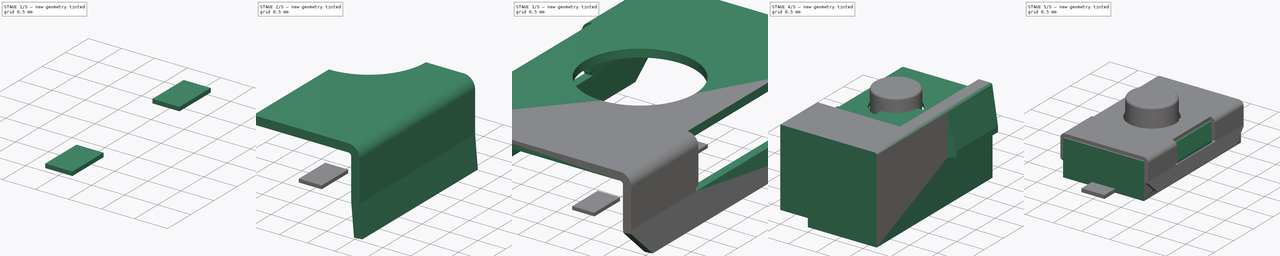
[diagram: build sequence overview — one tinted view per stage of 5, left to right]
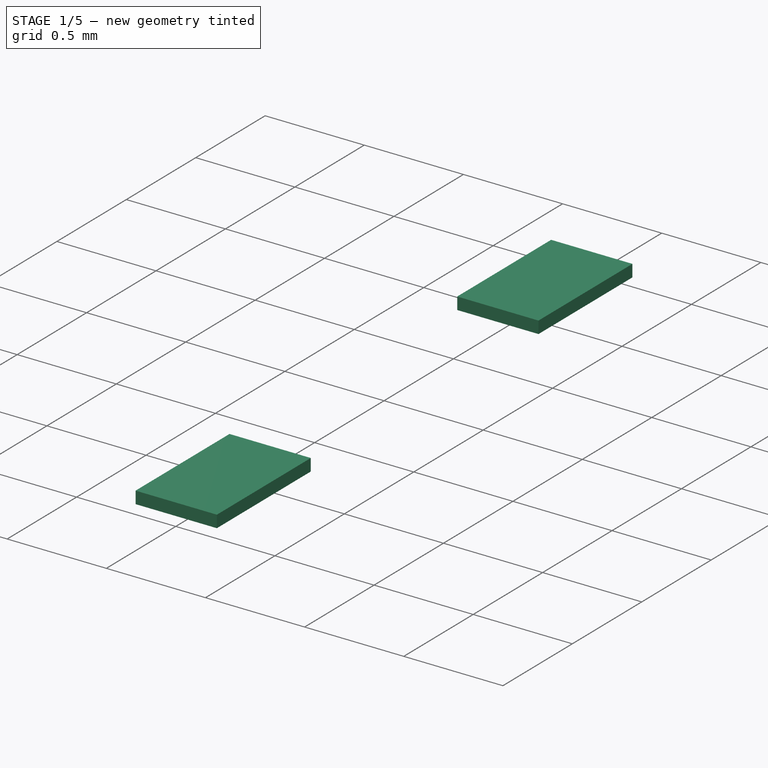
[diagram: stage 1 of 5 — iso view after this stage's code; geometry added in this stage tinted green]
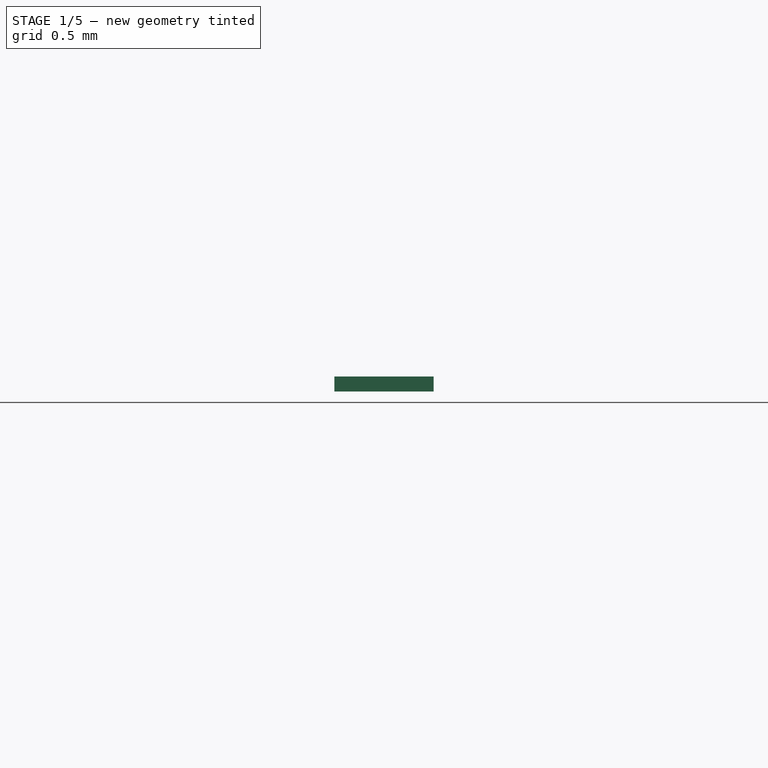
[diagram: stage 1 of 5 — front view after this stage's code; geometry added in this stage tinted green]
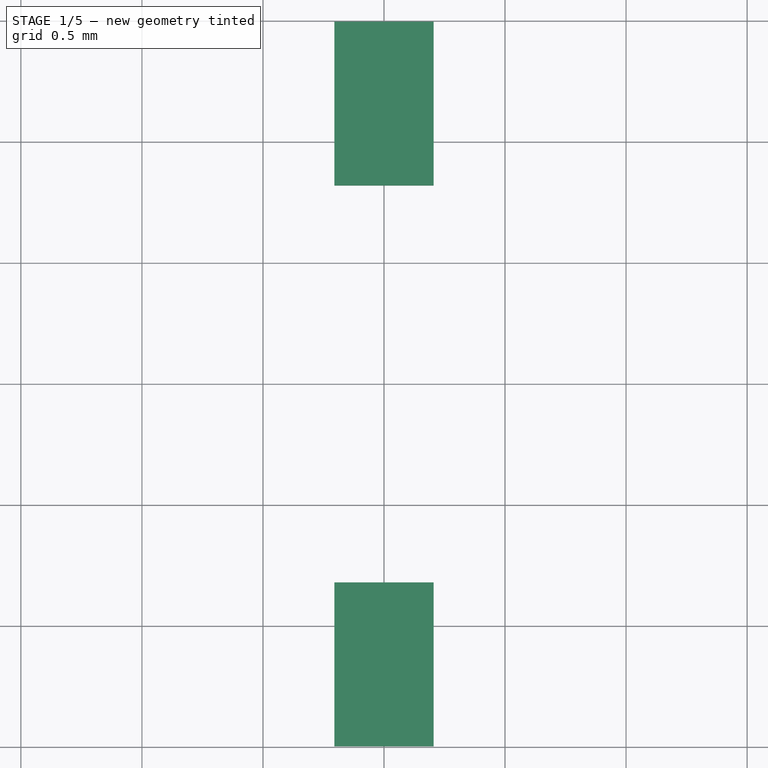
[diagram: stage 1 of 5 — top view after this stage's code; geometry added in this stage tinted green]
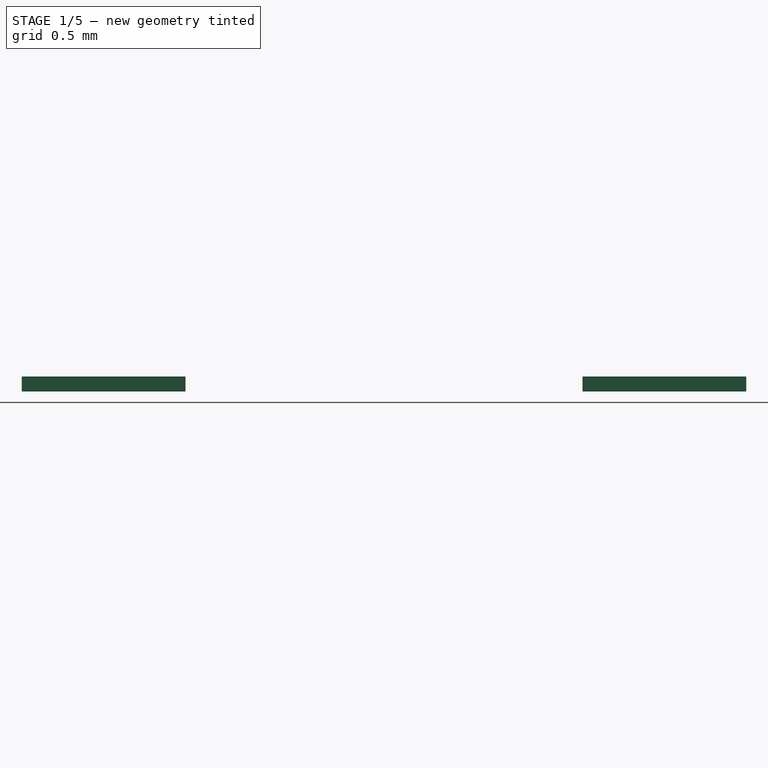
[diagram: stage 1 of 5 — right view after this stage's code; geometry added in this stage tinted green]
FCSTD DOCUMENT  (FreeCAD 0.16R6703 (Git))
Label: sw_smd_6.0x3.8
License: All rights reserved
LicenseURL: http://en.wikipedia.org/wiki/All_rights_reserved
objects: Part::FeaturePython×10, Sketcher::SketchObject×7, App::DocumentObjectGroup×6, Part::Feature×5, PartDesign::Pocket×5, Part::MultiFuse×5, Part::Mirroring×5, Part::Box×2, Part::Fillet×2, PartDesign::Pad×1, Part::Cylinder×1
note: 49 computed .brp shape members not serialized (recipe doc carries the construction recipe); baked Part::Feature solids carry a one-line shape summary decoded from their .brp

FEATURE [Part::Box] Box001  label="pin1-src"
  Height = 0.15
  Length = 1
  Placement = pos=(-0.5,-3.65,0.001) rot=(0,0,1;0rad)
  Width = 1.65
FEATURE [Part::Mirroring] Part__Mirroring004  label="pin1 (Mirror #5)"
  Base = (0,0,0)
  Normal = (0,1,0)
  Source = -> Box001
FEATURE [App::DocumentObjectGroup] Group004  label="pins"
  Group = -> [Box001,Part__Mirroring004]
FEATURE [App::DocumentObjectGroup] Group  label="src"
  Group = -> [Group001,Group002,Group003,Group004]
FEATURE [Part::FeaturePython] Clone003  label="pin1"  # Draft clone (typed FeaturePython)
  Objects = -> [Box001]
  Placement = pos=(-0.5,-3.65,0.001) rot=(0,0,1;0rad)
  Scale = (1,1,1)
FEATURE [Part::FeaturePython] Clone004  label="pin2"  # Draft clone (typed FeaturePython)
  Objects = -> [Part__Mirroring004]
  Scale = (1,1,1)
FEATURE [Part::FeaturePython] Clone008  label="Clone of pin1"  # Draft clone (typed FeaturePython)
  Objects = -> [Clone003]
  Placement = pos=(-0.5,-3.65,0.001) rot=(0,0,1;0rad)
  Scale = (0.41,0.41,0.41)
FEATURE [Part::FeaturePython] Clone009  label="Clone of pin2"  # Draft clone (typed FeaturePython)
  Objects = -> [Clone004]
  Scale = (0.41,0.41,0.41)
FEATURE [App::DocumentObjectGroup] Group005  label="Rescaled-for-kicad"
  Group = -> [Clone005,Clone006,Clone007,Clone008,Clone009]
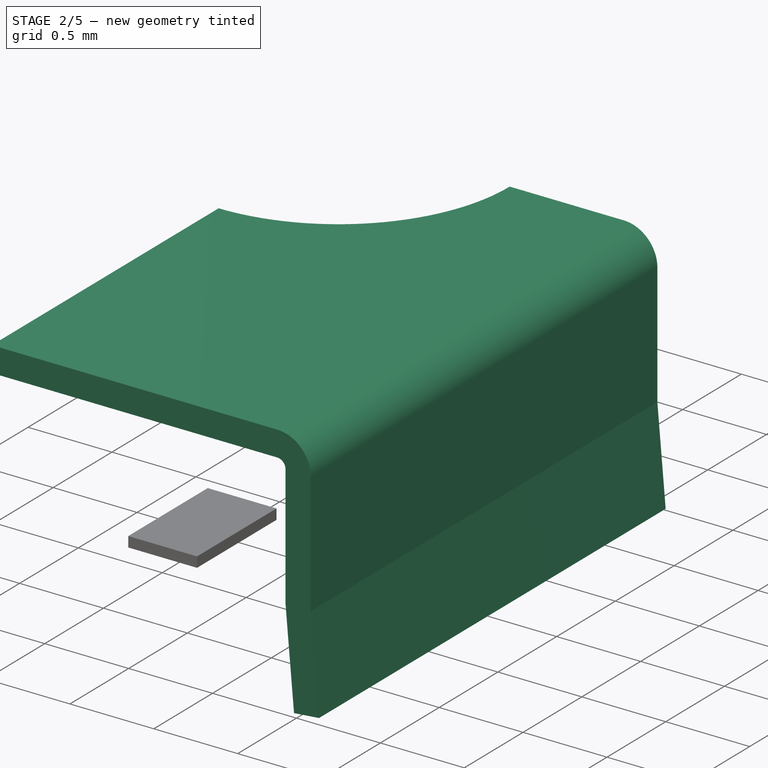
[diagram: stage 2 of 5 — iso view after this stage's code; geometry added in this stage tinted green]
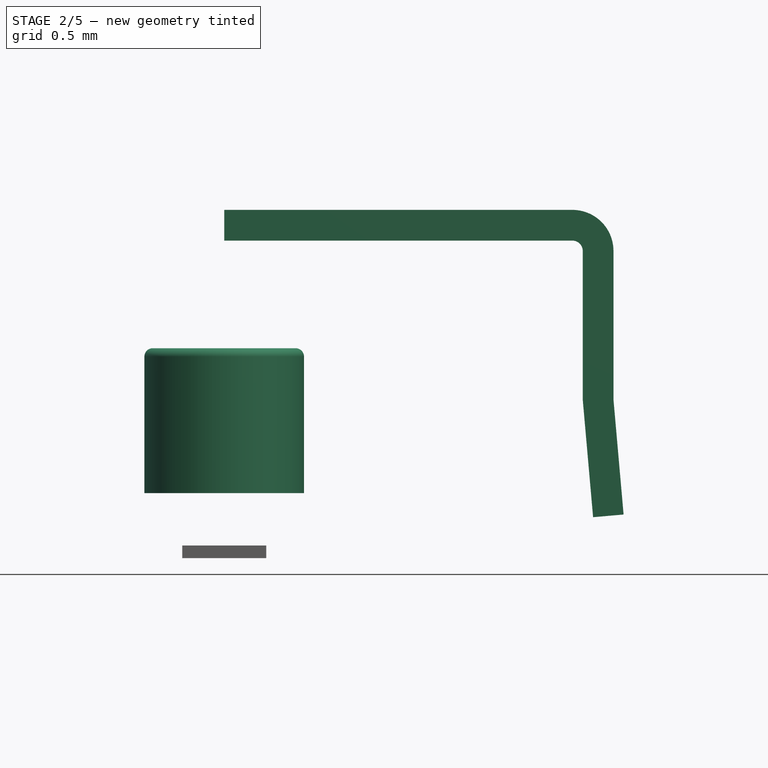
[diagram: stage 2 of 5 — front view after this stage's code; geometry added in this stage tinted green]
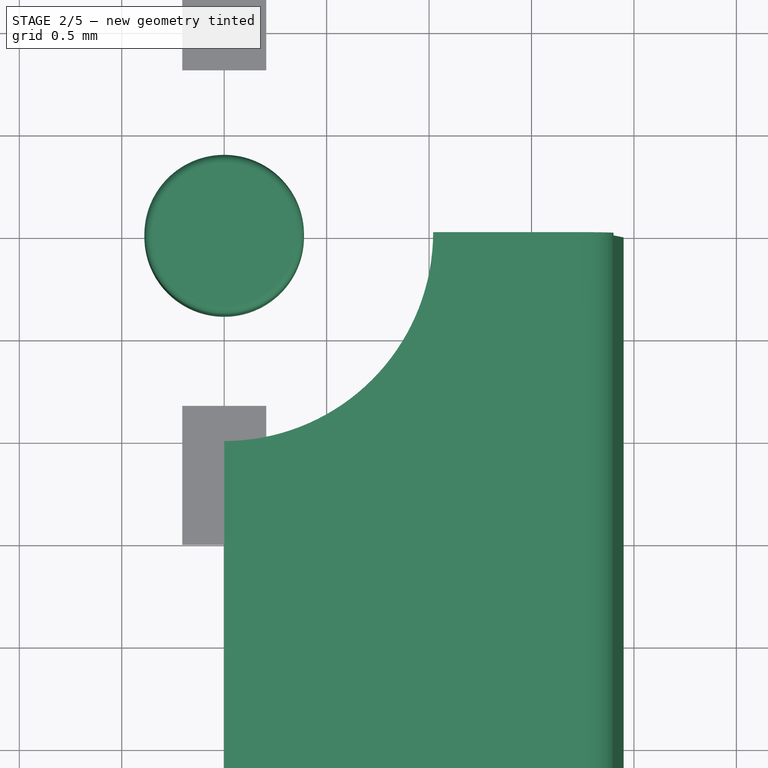
[diagram: stage 2 of 5 — top view after this stage's code; geometry added in this stage tinted green]
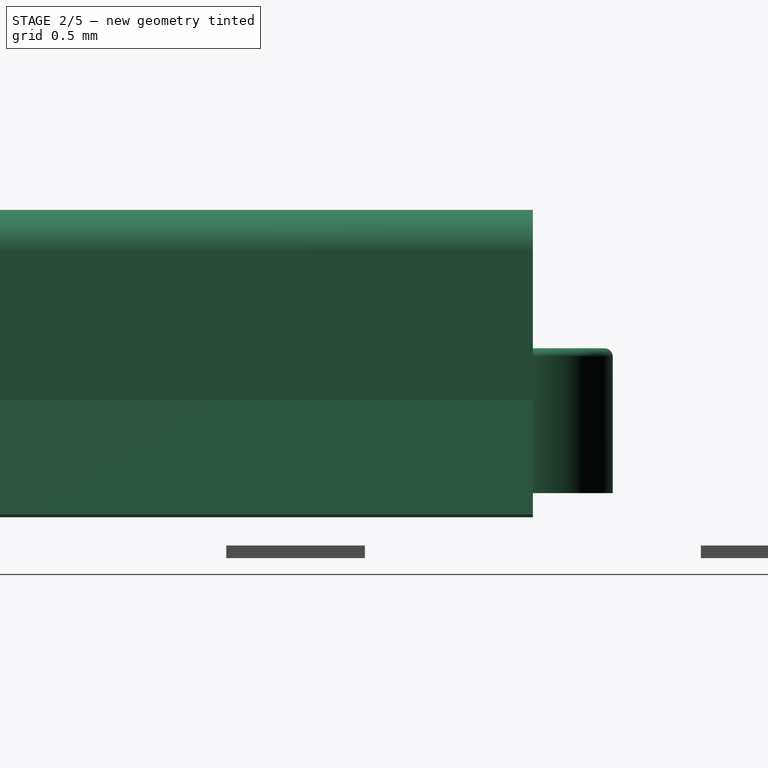
[diagram: stage 2 of 5 — right view after this stage's code; geometry added in this stage tinted green]
FEATURE [Sketcher::SketchObject] Sketch003  label="cover-sketch"
  Placement = pos=(0,0,0) rot=(-1,0,0;4.71239rad)
  sketch-geometry (14):
    g0: LineSegment StartX=1.7 StartY=1.7 StartZ=0 EndX=0 EndY=1.7 EndZ=0
    g1: LineSegment StartX=0 StartY=1.7 StartZ=0 EndX=0 EndY=1.55 EndZ=0
    g2: LineSegment StartX=0 StartY=1.55 StartZ=0 EndX=1.7 EndY=1.55 EndZ=0
    g3: LineSegment StartX=1.75 StartY=1.5 StartZ=0 EndX=1.75 EndY=0.775 EndZ=0
    g4: LineSegment StartX=1.75 StartY=0.775 StartZ=0 EndX=1.8006 EndY=0.200071 EndZ=0
    g5: LineSegment StartX=1.8006 StartY=0.200071 StartZ=0 EndX=1.94945 EndY=0.213172 EndZ=0
    g6: LineSegment StartX=1.94945 StartY=0.213172 StartZ=0 EndX=1.9 EndY=0.775 EndZ=0
    g7: LineSegment StartX=1.9 StartY=0.775 StartZ=0 EndX=1.9 EndY=1.5 EndZ=0
    g8: LineSegment [constr] StartX=1.7 StartY=1.7 StartZ=0 EndX=1.7 EndY=1.55 EndZ=0
    g9: LineSegment [constr] StartX=1.75 StartY=1.5 StartZ=0 EndX=1.9 EndY=1.5 EndZ=0
    g10: ArcOfCircle CenterX=1.7 CenterY=1.5 CenterZ=0 NormalX=0 NormalY=0 NormalZ=1 Radius=0.05 StartAngle=6.28319 EndAngle=7.85398
    g11: ArcOfCircle CenterX=1.7 CenterY=1.5 CenterZ=0 NormalX=0 NormalY=0 NormalZ=1 Radius=0.2 StartAngle=-9.72e-10 EndAngle=1.5708
    g12: LineSegment [constr] StartX=1.75 StartY=0.775 StartZ=0 EndX=1.9 EndY=0.775 EndZ=0
    g13: LineSegment [constr] StartX=1.75 StartY=0.775 StartZ=0 EndX=1.75 EndY=0 EndZ=0
  constraints (40):
    c: PointOnObject(g0,g-2)
    c: Horizontal(g0)
    c: Coincident(g0,g1)
    c: Vertical(g1)
    c: Coincident(g1,g2)
    c: Horizontal(g2)
    c: Vertical(g3)
    c: Coincident(g3,g4)
    c: Coincident(g4,g5)
    c: Coincident(g5,g6)
    c: Coincident(g6,g7)
    c: Vertical(g7)
    c: Coincident(g8,g0)
    c: Coincident(g8,g2)
    c: Vertical(g8)
    c: Horizontal(g9)
    c: Coincident(g3,g9)
    c: Coincident(g7,g9)
    c: Coincident(g11,g10)
    c: Coincident(g10,g2)
    c: Coincident(g10,g3)
    c: PointOnObject(g10,g8)
    c: Equal(g8,g9)
    c: Coincident(g11,g0)
    c: Coincident(g11,g7)
    c: DistanceY(g1,g1) = 0.15
    c: DistanceY(g-1,g1) = 1.55
    c: DistanceX(g2,g2) = 1.7
    c: DistanceX(g-1,g3) = 1.75
    c: Horizontal(g12)
    c: Coincident(g12,g3)
    c: Coincident(g12,g6)
    c: DistanceY(g7,g7) = 0.725
    c: PointOnObject(g13,g-1)
    c: Vertical(g13)
    c: Coincident(g13,g3)
    c: Angle(g13,g4) = 0.0877901
    c: Perpendicular(g5,g4)
    c: Parallel(g4,g6)
    c: Distance(g6) = 0.564
FEATURE [PartDesign::Pad] Pad
  Length = 2.95
  Length2 = 100
  Placement = pos=(0,0,0) rot=(-1,0,0;4.71239rad)
  Sketch = -> Sketch003
  Type = 0
FEATURE [Sketcher::SketchObject] Sketch004
  Placement = pos=(0,0,1.7) rot=(0,0,1;3.14159rad)
  Support = -> Pad [Face1]
  sketch-geometry (3):
    g0: ArcOfCircle CenterX=0 CenterY=0 CenterZ=0 NormalX=0 NormalY=0 NormalZ=1 Radius=1.02 StartAngle=1.5708 EndAngle=3.14159
    g1: LineSegment StartX=0 StartY=1.02 StartZ=0 EndX=0 EndY=0 EndZ=0
    g2: LineSegment StartX=0 StartY=0 StartZ=0 EndX=-1.02 EndY=0 EndZ=0
  constraints (9):
    c: Coincident(g0,g-1)
    c: PointOnObject(g0,g-1)
    c: PointOnObject(g0,g-2)
    c: Coincident(g0,g1)
    c: Coincident(g1,g2)
    c: Coincident(g2,g0)
    c: Horizontal(g2)
    c: Coincident(g1,g-1)
    c: Radius(g0) = 1.02
FEATURE [PartDesign::Pocket] Pocket002
  Length = 5
  Placement = pos=(0,0,0) rot=(-1,0,0;4.71239rad)
  Sketch = -> Sketch004
  Type = 1
FEATURE [Part::Cylinder] Cylinder
  Angle = 360
  Height = 1.725
  Placement = pos=(4e-12,-1e-12,0.775) rot=(0,0,1;0rad)
  Radius = 0.95
FEATURE [Part::Fillet] Fillet001
  Base = -> Cylinder
  Edges = 1 edges r=0.1: [Edge1]
FEATURE [App::DocumentObjectGroup] Group003  label="button-src"
  Group = -> [Fillet001]
FEATURE [Part::FeaturePython] Clone002  label="button"  # Draft clone (typed FeaturePython)
  Objects = -> [Fillet001]
  Scale = (1,1,1)
FEATURE [Part::FeaturePython] Clone007  label="Clone of button"  # Draft clone (typed FeaturePython)
  Objects = -> [Clone002]
  Scale = (0.41,0.41,0.41)
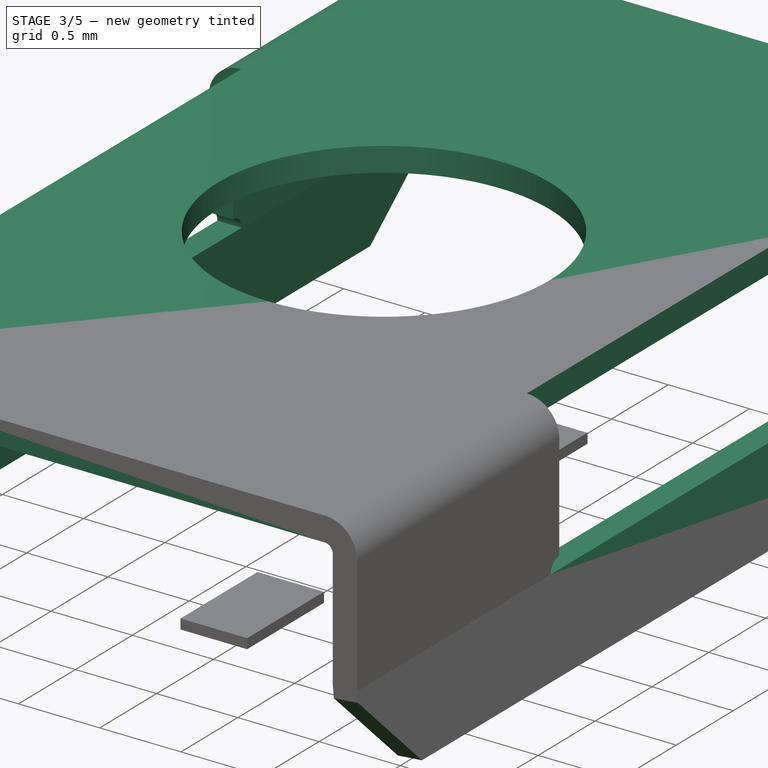
[diagram: stage 3 of 5 — iso view after this stage's code; geometry added in this stage tinted green]
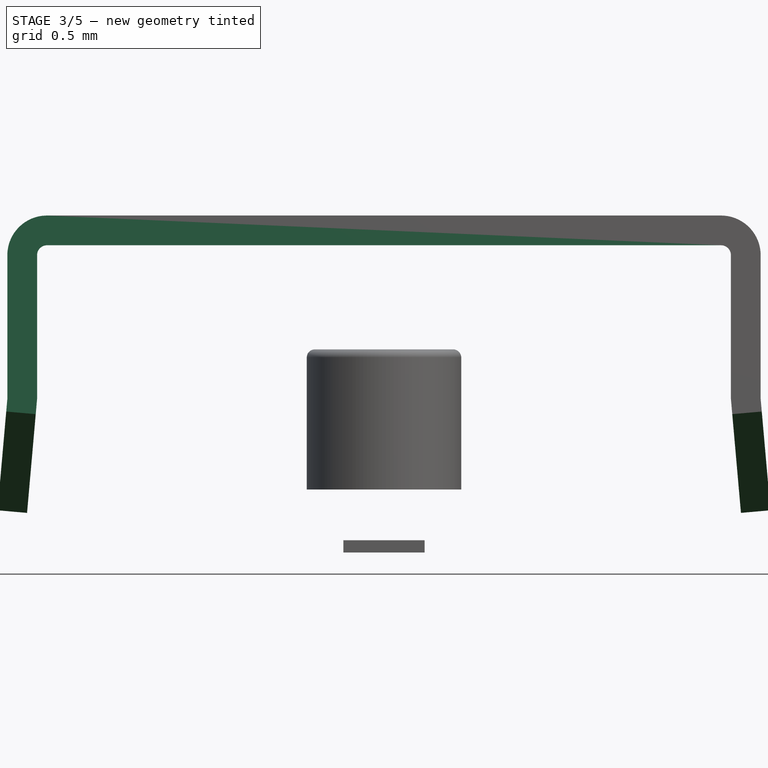
[diagram: stage 3 of 5 — front view after this stage's code; geometry added in this stage tinted green]
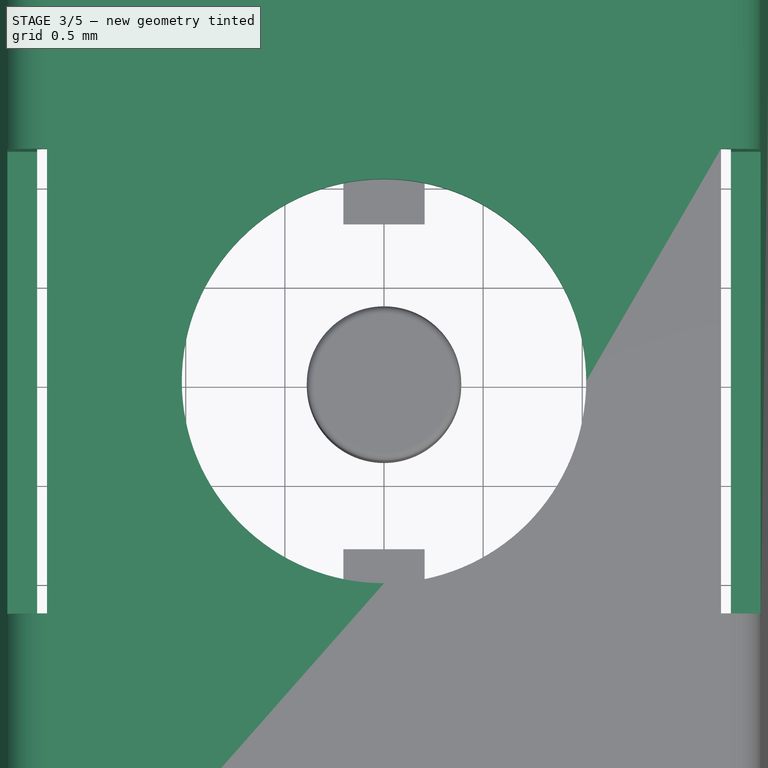
[diagram: stage 3 of 5 — top view after this stage's code; geometry added in this stage tinted green]
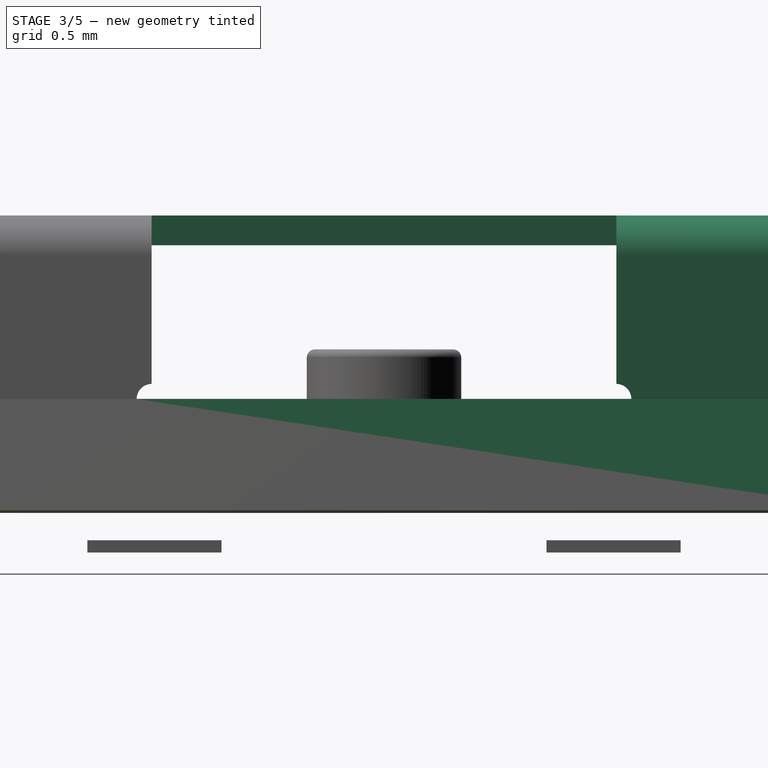
[diagram: stage 3 of 5 — right view after this stage's code; geometry added in this stage tinted green]
FEATURE [Sketcher::SketchObject] Sketch005
  ExternalGeometry = -> [Pocket002]
  Placement = pos=(1.9,0,0) rot=(0.707107,0,0.707107;3.14159rad)
  Support = -> Pocket002 [Face13]
  sketch-geometry (6):
    g0: LineSegment StartX=0.775 StartY=0 StartZ=0 EndX=1.7 EndY=0 EndZ=0
    g1: LineSegment StartX=1.7 StartY=0 StartZ=0 EndX=1.7 EndY=1.172 EndZ=0
    g2: LineSegment StartX=1.7 StartY=1.172 StartZ=0 EndX=0.8506 EndY=1.172 EndZ=0
    g3: ArcOfCircle CenterX=0.775 CenterY=1.172 CenterZ=0 NormalX=0 NormalY=0 NormalZ=1 Radius=0.0756 StartAngle=0 EndAngle=1.5708
    g4: LineSegment StartX=0.775 StartY=1.172 StartZ=0 EndX=0.775 EndY=0 EndZ=0
    g5: LineSegment StartX=0.775 StartY=1.2476 StartZ=0 EndX=0.775 EndY=1.172 EndZ=0
  constraints (19):
    c: Horizontal(g0)
    c: Coincident(g0,g1)
    c: Vertical(g1)
    c: Coincident(g1,g2)
    c: Horizontal(g2)
    c: Coincident(g0,g-4)
    c: Coincident(g0,g-3)
    c: DistanceY(g0,g1) = 1.172
    c: PointOnObject(g3,g-4)
    c: Coincident(g3,g2)
    c: Radius(g3) = 0.0756
    c: PointOnObject(g3,g-4)
    c: PointOnObject(g3,g2)
    c: Vertical(g4)
    c: Coincident(g4,g3)
    c: Coincident(g4,g0)
    c: Vertical(g5)
    c: Coincident(g5,g3)
    c: Coincident(g5,g3)
FEATURE [PartDesign::Pocket] Pocket003
  Length = 0.2
  Placement = pos=(0,0,0) rot=(-1,0,0;4.71239rad)
  Sketch = -> Sketch005
  Type = 0
FEATURE [Sketcher::SketchObject] Sketch006
  ExternalGeometry = -> [Pocket003]
  Placement = pos=(1.95308,0,0.171903) rot=(0.675397,0,0.737454;3.14159rad)
  Support = -> Pocket003 [Face15]
  sketch-geometry (3):
    g0: LineSegment StartX=0.0414285 StartY=2.45 StartZ=0 EndX=0.541428 EndY=2.95 EndZ=0
    g1: LineSegment StartX=0.541428 StartY=2.95 StartZ=0 EndX=0.0414285 EndY=2.95 EndZ=0
    g2: LineSegment StartX=0.0414285 StartY=2.95 StartZ=0 EndX=0.0414285 EndY=2.45 EndZ=0
  constraints (8):
    c: Horizontal(g1)
    c: Coincident(g1,g2)
    c: Coincident(g2,g0)
    c: PointOnObject(g0,g-3)
    c: Coincident(g1,g0)
    c: Coincident(g1,g-3)
    c: DistanceX(g1,g1) = 0.5
    c: DistanceY(g0,g1) = 0.5
FEATURE [PartDesign::Pocket] Pocket004
  Length = 5
  Placement = pos=(0,0,0) rot=(-1,0,0;4.71239rad)
  Sketch = -> Sketch006
  Type = 1
FEATURE [Part::Mirroring] Part__Mirroring002  label="Pocket004 (Mirror #3)"
  Base = (0,0,0)
  Normal = (0,1,0)
  Source = -> Pocket004
FEATURE [Part::MultiFuse] Fusion003
  Shapes = -> [Part__Mirroring002,Pocket004]
FEATURE [Part::Mirroring] Part__Mirroring003  label="Fusion003 (Mirror #4)"
  Base = (0,0,0)
  Normal = (1,0,0)
  Source = -> Fusion003
FEATURE [Part::MultiFuse] Fusion004
  Shapes = -> [Part__Mirroring003,Fusion003]
FEATURE [App::DocumentObjectGroup] Group002  label="cover-src"
  Group = -> [Pad,Pocket002,Pocket003,Fusion004]
FEATURE [Part::FeaturePython] Clone001  label="cover"  # Draft clone (typed FeaturePython)
  Objects = -> [Fusion004]
  Scale = (1,1,1)
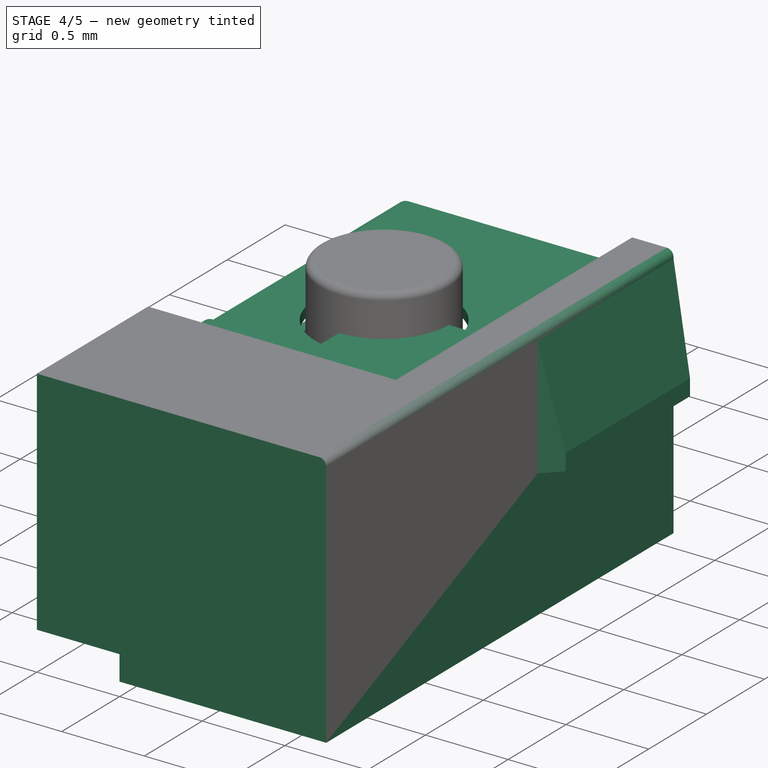
[diagram: stage 4 of 5 — iso view after this stage's code; geometry added in this stage tinted green]
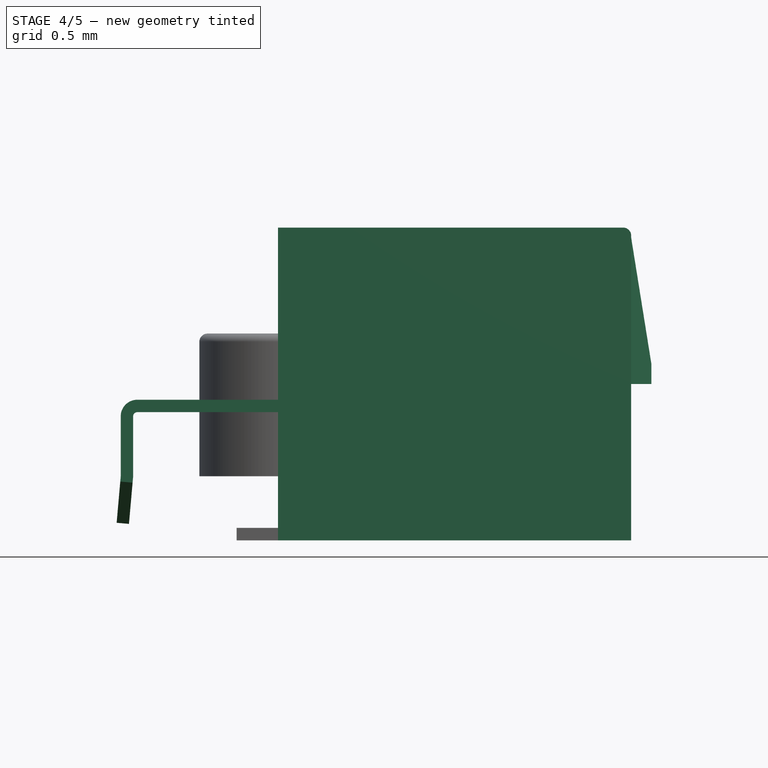
[diagram: stage 4 of 5 — front view after this stage's code; geometry added in this stage tinted green]
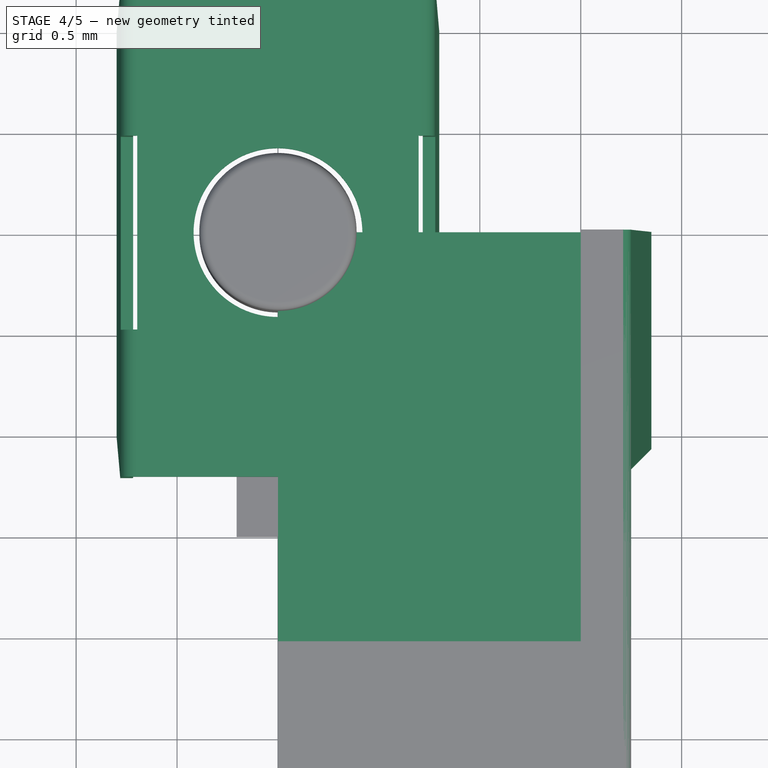
[diagram: stage 4 of 5 — top view after this stage's code; geometry added in this stage tinted green]
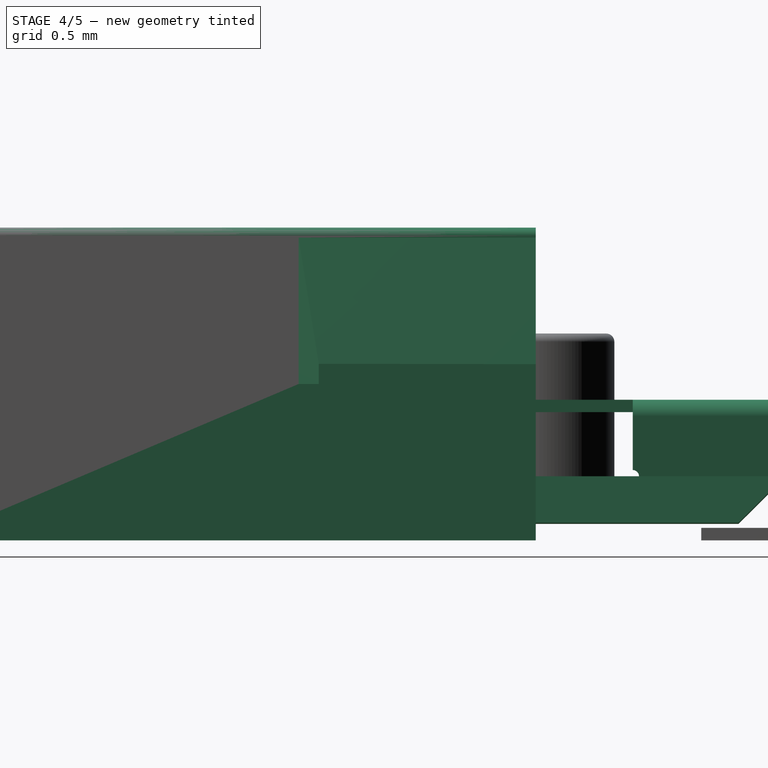
[diagram: stage 4 of 5 — right view after this stage's code; geometry added in this stage tinted green]
FEATURE [Part::Feature] Part__Feature081  label="base001"
  Placement = pos=(4e-12,-1e-12,0) rot=(0,0,-1;1.5708rad)
  shape: bbox 3.7 x 6 x 2.5 mm, 42 faces (baked)
FEATURE [Part::Feature] Part__Feature082  label="top_cover001"
  Placement = pos=(4e-12,-1e-12,0) rot=(0,0,-1;1.5708rad)
  shape: bbox 3.9 x 5.9 x 1.5 mm, 63 faces (baked)
FEATURE [Part::Feature] Part__Feature083  label="pins002"
  Placement = pos=(4e-12,-1e-12,0.001) rot=(0,0,-1;1.5708rad)
  shape: bbox 1 x 1.65 x 0.15 mm, 6 faces (baked)
FEATURE [Part::Feature] Part__Feature084  label="pins003"
  Placement = pos=(4e-12,-1e-12,0.001) rot=(0,0,-1;1.5708rad)
  shape: bbox 1 x 1.65 x 0.15 mm, 6 faces (baked)
FEATURE [Sketcher::SketchObject] Sketch
FEATURE [Part::Box] Box  label="Cube"
  Height = 1.55
  Length = 1.75
  Placement = pos=(0,-3,0) rot=(0,0,1;0rad)
  Width = 3
FEATURE [Sketcher::SketchObject] Sketch001
  ExternalGeometry = -> [Box]
  Placement = pos=(0,-3,1.55) rot=(0,0,1;0rad)
  Support = -> Box [Face6]
  sketch-geometry (4):
    g0: LineSegment StartX=0 StartY=3 StartZ=0 EndX=1.5 EndY=3 EndZ=0
    g1: LineSegment StartX=1.5 StartY=3 StartZ=0 EndX=1.5 EndY=0.96 EndZ=0
    g2: LineSegment StartX=1.5 StartY=0.96 StartZ=0 EndX=0 EndY=0.96 EndZ=0
    g3: LineSegment StartX=0 StartY=0.96 StartZ=0 EndX=0 EndY=3 EndZ=0
  constraints (11):
    c: Coincident(g0,g1)
    c: Coincident(g1,g2)
    c: Coincident(g2,g3)
    c: Coincident(g3,g0)
    c: Horizontal(g0)
    c: Horizontal(g2)
    c: Vertical(g1)
    c: Vertical(g3)
    c: Coincident(g0,g-3)
    c: DistanceX(g2,g2) = 1.5
    c: DistanceY(g3,g3) = 2.04
FEATURE [PartDesign::Pocket] Pocket
  Length = 0.775
  Placement = pos=(0,-3,0) rot=(0,0,1;0rad)
  Sketch = -> Sketch001
  Type = 0
FEATURE [Sketcher::SketchObject] Sketch002
  Placement = pos=(0,-3,0) rot=(1,0,0;3.14159rad)
  Support = -> Pocket [Face6]
  sketch-geometry (4):
    g0: LineSegment StartX=0 StartY=0 StartZ=0 EndX=0.5 EndY=0 EndZ=0
    g1: LineSegment StartX=0.5 StartY=0 StartZ=0 EndX=0.5 EndY=-1 EndZ=0
    g2: LineSegment StartX=0.5 StartY=-1 StartZ=0 EndX=0 EndY=-1 EndZ=0
    g3: LineSegment StartX=0 StartY=-1 StartZ=0 EndX=0 EndY=0 EndZ=0
  constraints (11):
    c: Coincident(g0,g1)
    c: Coincident(g1,g2)
    c: Coincident(g2,g3)
    c: Coincident(g3,g0)
    c: Horizontal(g0)
    c: Horizontal(g2)
    c: Vertical(g1)
    c: Vertical(g3)
    c: Coincident(g-1,g0)
    c: DistanceX(g2,g2) = 0.5
    c: DistanceY(g1,g1) = 1
FEATURE [PartDesign::Pocket] Pocket001
  Length = 0.15
  Placement = pos=(0,-3,0) rot=(0,0,1;0rad)
  Sketch = -> Sketch002
  Type = 0
FEATURE [Part::Feature] Solid002
  shape: bbox 0.2006 x 1.345 x 0.8403 mm, 6 faces (baked)
FEATURE [Part::MultiFuse] Fusion
  Shapes = -> [Pocket001,Solid002]
FEATURE [Part::Fillet] Fillet
  Base = -> Fusion
  Edges = 1 edges r=0.04: [Edge12]
FEATURE [Part::FeaturePython] Clone006  label="Clone of cover"  # Draft clone (typed FeaturePython)
  Objects = -> [Clone001]
  Scale = (0.41,0.41,0.41)
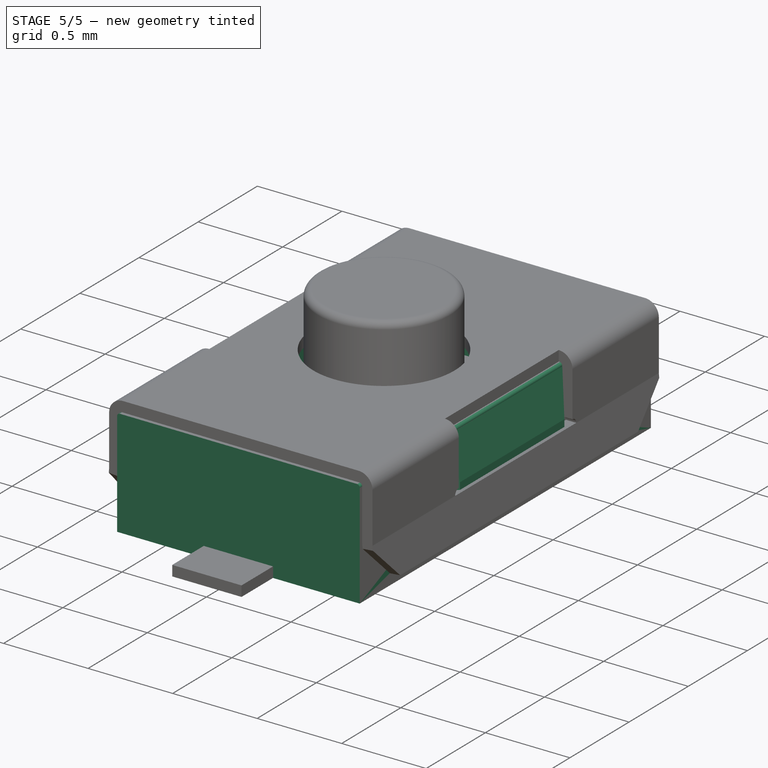
[diagram: stage 5 of 5 — iso view after this stage's code; geometry added in this stage tinted green]
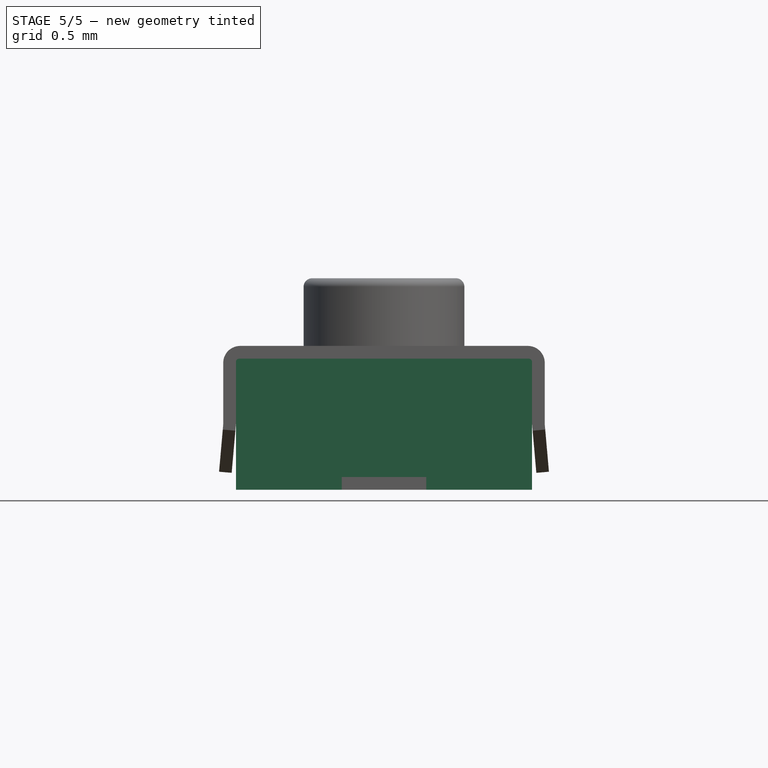
[diagram: stage 5 of 5 — front view after this stage's code; geometry added in this stage tinted green]
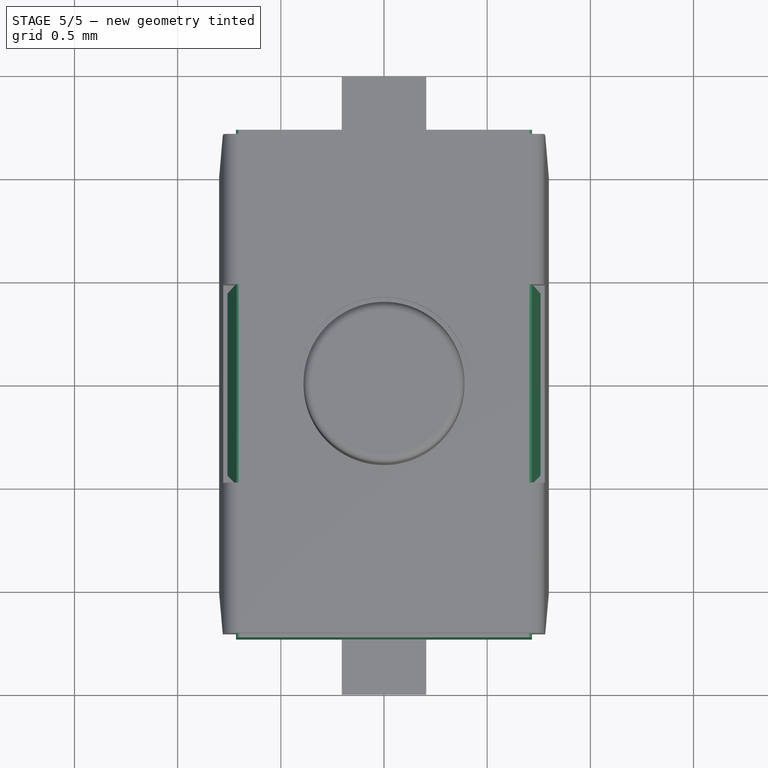
[diagram: stage 5 of 5 — top view after this stage's code; geometry added in this stage tinted green]
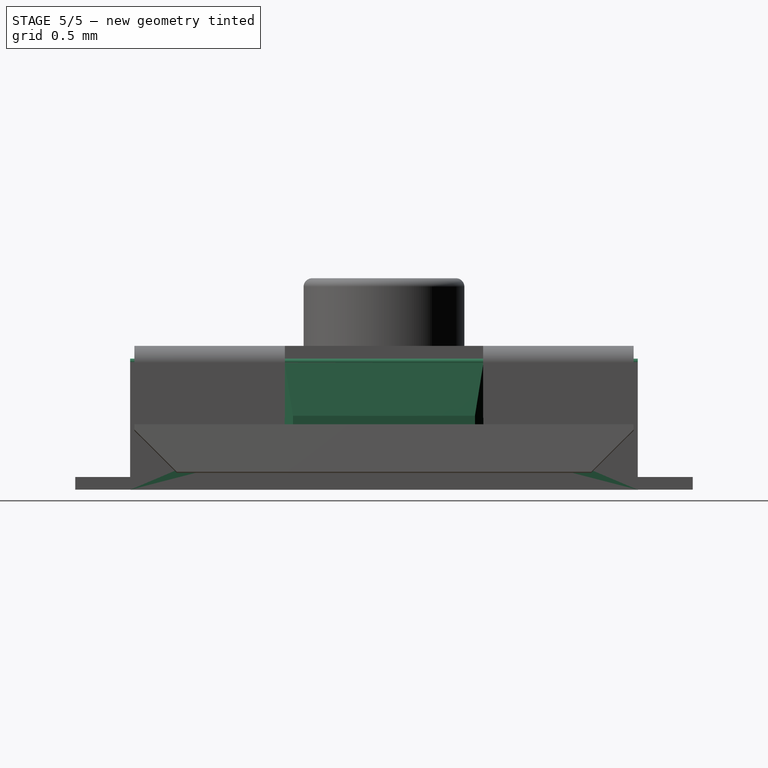
[diagram: stage 5 of 5 — right view after this stage's code; geometry added in this stage tinted green]
FEATURE [Part::Mirroring] Part__Mirroring  label="Fillet (Mirror #1)"
  Base = (0,0,0)
  Normal = (0,1,0)
  Source = -> Fillet
FEATURE [Part::MultiFuse] Fusion001
  Shapes = -> [Part__Mirroring,Fillet]
FEATURE [Part::Mirroring] Part__Mirroring001  label="Fusion001 (Mirror #2)"
  Base = (0,0,0)
  Normal = (1,0,0)
  Source = -> Fusion001
FEATURE [Part::MultiFuse] Fusion002
  Shapes = -> [Part__Mirroring001,Fusion001]
FEATURE [App::DocumentObjectGroup] Group001  label="Body-src"
  Group = -> [Sketch,Box,Pocket,Fusion002]
FEATURE [Part::FeaturePython] Clone  label="body"  # Draft clone (typed FeaturePython)
  Objects = -> [Fusion002]
  Scale = (1,1,1)
FEATURE [Part::FeaturePython] Clone005  label="Clone of body"  # Draft clone (typed FeaturePython)
  Objects = -> [Clone]
  Scale = (0.41,0.41,0.41)
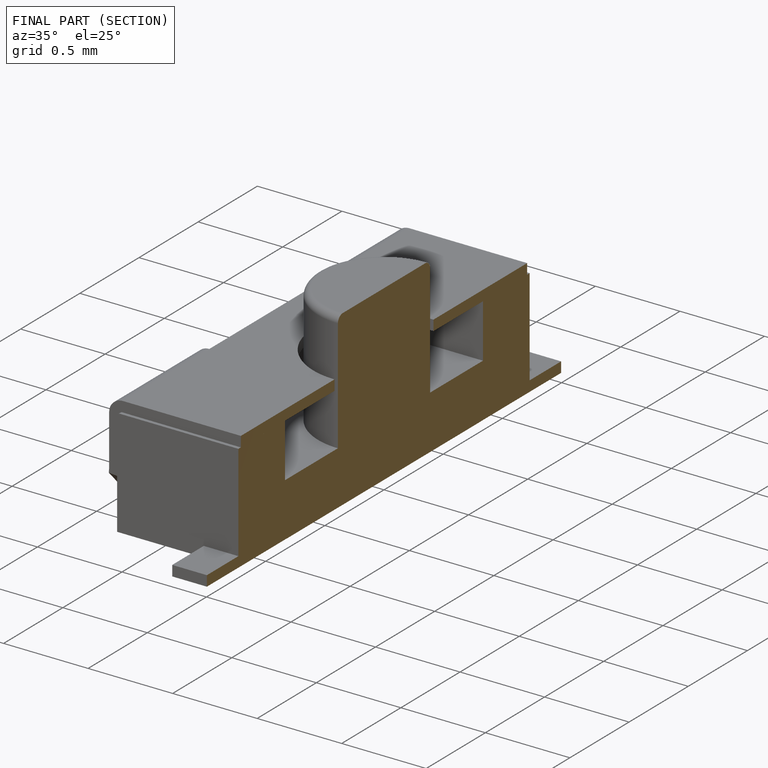
[diagram: finished part — half-section view (interior)]
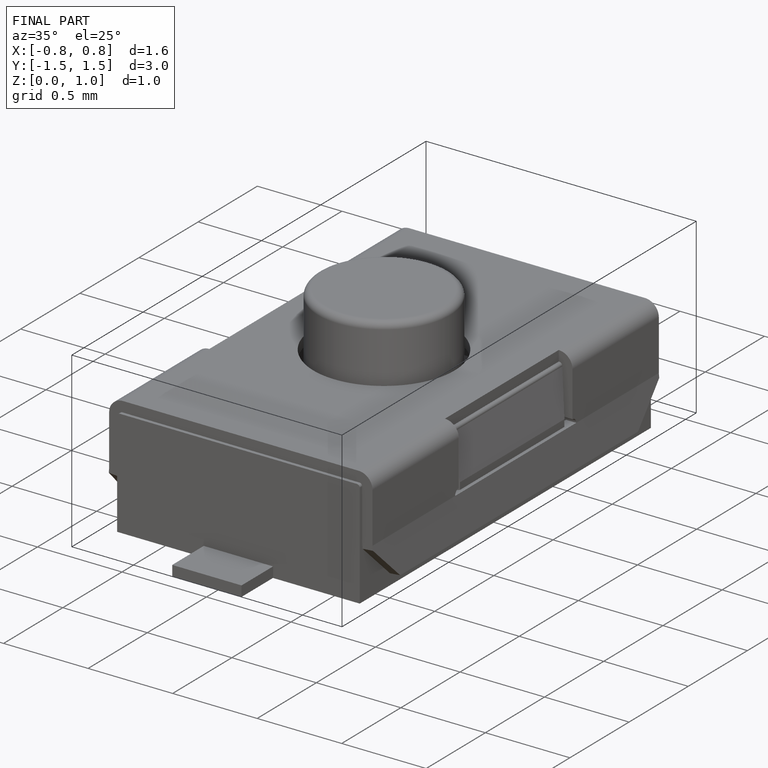
[diagram: finished part — iso view with bounding-box wireframe]
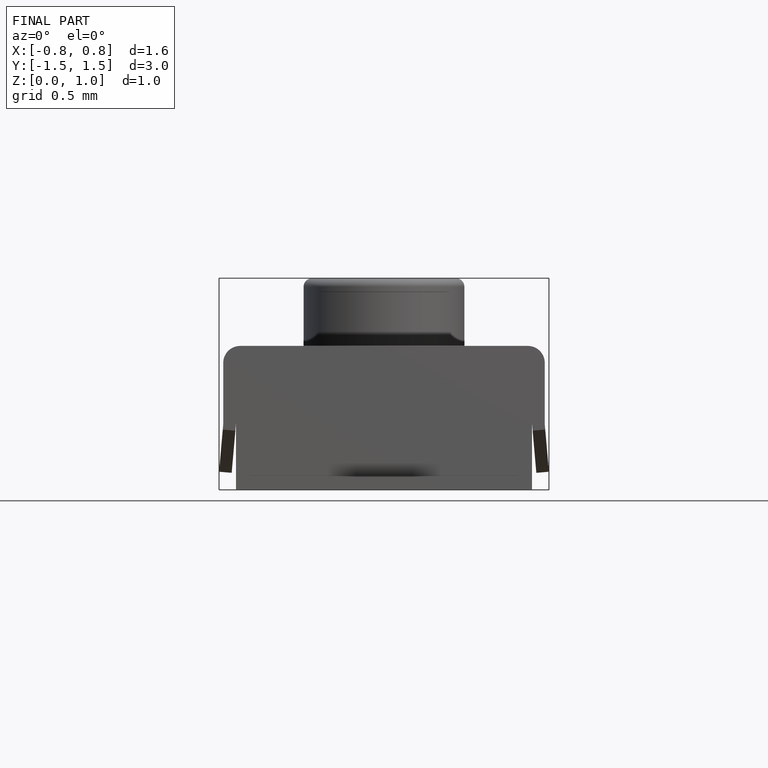
[diagram: finished part — front view with bounding-box wireframe]
